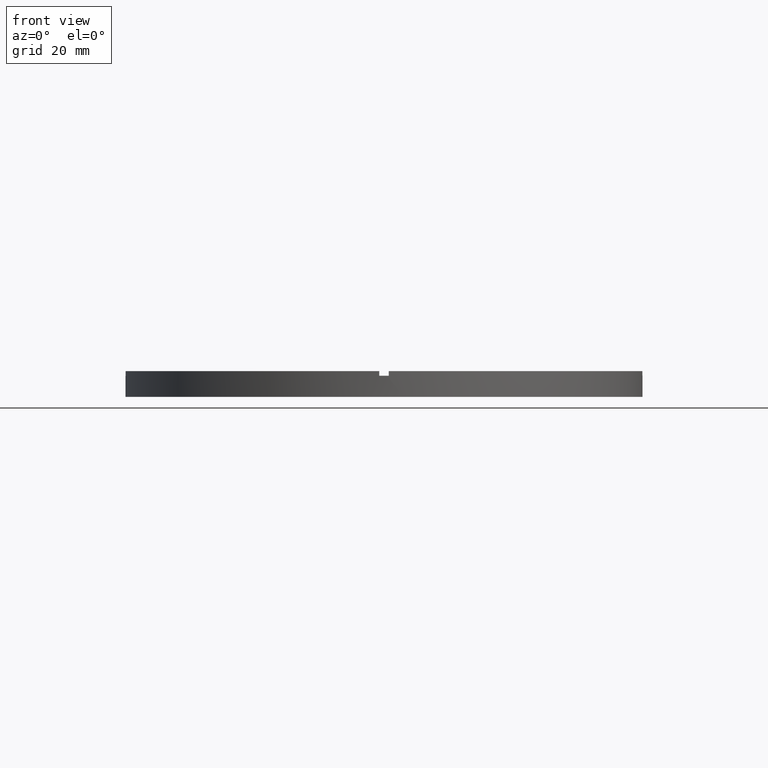
[diagram: clean part render]
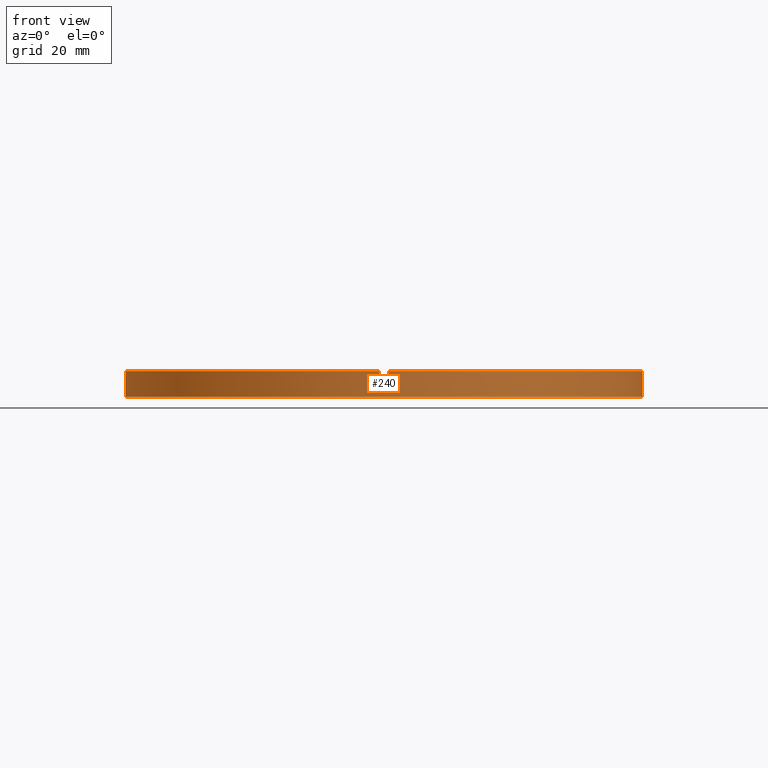
[diagram: same view with one face highlighted and labeled with its STEP entity id]
A machine part, front view. The second image highlights one B-rep face of the part: STEP entity #240.
In plain terms, the highlighted cylindrical surface (partial cylindrical patch) has radius 55 mm, axis along (-0, -0, -1).
Its self-contained STEP definition (entity closure, byte-faithful):
#3 = DIRECTION ( 'NONE',  ( 0.000000000000000000, 0.000000000000000000, 1.000000000000000000 ) ) ;
#12 = CIRCLE ( 'NONE', #231, 55.00000000000000000 ) ;
#13 = EDGE_CURVE ( 'NONE', #445, #421, #239, .T. ) ;
#15 = VECTOR ( 'NONE', #529, 1000.000000000000000 ) ;
#17 = LINE ( 'NONE', #228, #298 ) ;
#33 = CYLINDRICAL_SURFACE ( 'NONE', #345, 55.00000000000000000 ) ;
#36 = LINE ( 'NONE', #241, #15 ) ;
#56 = EDGE_CURVE ( 'NONE', #482, #685, #247, .T. ) ;
#60 = CARTESIAN_POINT ( 'NONE',  ( 0.000000000000000000, 0.000000000000000000, 4.500000000000000000 ) ) ;
#73 = DIRECTION ( 'NONE',  ( 1.000000000000000000, 0.000000000000000000, 0.000000000000000000 ) ) ;
#93 = CARTESIAN_POINT ( 'NONE',  ( -55.00000000000000000, 0.000000000000000000, 4.500000000000000000 ) ) ;
#95 = CARTESIAN_POINT ( 'NONE',  ( 55.00000000000000000, 6.735557395310442615E-15, 4.500000000000000000 ) ) ;
#100 = CARTESIAN_POINT ( 'NONE',  ( -55.00000000000000000, 0.000000000000000000, 5.500000000000000000 ) ) ;
#108 = LINE ( 'NONE', #317, #392 ) ;
#127 = EDGE_CURVE ( 'NONE', #438, #151, #17, .T. ) ;
#129 = CIRCLE ( 'NONE', #316, 55.00000000000000000 ) ;
#139 = CARTESIAN_POINT ( 'NONE',  ( -54.99090833947007440, -1.000000000000032863, 4.500000000000000000 ) ) ;
#147 = DIRECTION ( 'NONE',  ( -1.000000000000000000, 0.000000000000000000, 0.000000000000000000 ) ) ;
#148 = ORIENTED_EDGE ( 'NONE', *, *, #394, .T. ) ;
#151 = VERTEX_POINT ( 'NONE', #248 ) ;
#154 = ORIENTED_EDGE ( 'NONE', *, *, #269, .T. ) ;
#161 = CARTESIAN_POINT ( 'NONE',  ( 0.000000000000000000, 0.000000000000000000, 5.500000000000000000 ) ) ;
#173 = ORIENTED_EDGE ( 'NONE', *, *, #571, .T. ) ;
#178 = DIRECTION ( 'NONE',  ( 1.000000000000000000, 0.000000000000000000, 0.000000000000000000 ) ) ;
#185 = VERTEX_POINT ( 'NONE', #93 ) ;
#192 = ORIENTED_EDGE ( 'NONE', *, *, #614, .F. ) ;
#193 = ORIENTED_EDGE ( 'NONE', *, *, #13, .T. ) ;
#196 = VERTEX_POINT ( 'NONE', #139 ) ;
#219 = VERTEX_POINT ( 'NONE', #260 ) ;
#228 = CARTESIAN_POINT ( 'NONE',  ( 0.9999999999998445688, -54.99090833947008150, 5.500000000000000000 ) ) ;
#231 = AXIS2_PLACEMENT_3D ( 'NONE', #620, #503, #770 ) ;
#239 = LINE ( 'NONE', #622, #763 ) ;
#240 = ADVANCED_FACE ( 'NONE', ( #303 ), #33, .T. ) ;
#241 = CARTESIAN_POINT ( 'NONE',  ( -1.000000000000155431, -54.99090833947007440, 5.500000000000000000 ) ) ;
#247 = CIRCLE ( 'NONE', #367, 55.00000000000000000 ) ;
#248 = CARTESIAN_POINT ( 'NONE',  ( 0.9999999999998445688, -54.99090833947008150, 4.500000000000000000 ) ) ;
#260 = CARTESIAN_POINT ( 'NONE',  ( -55.00000000000000000, 0.000000000000000000, 0.000000000000000000 ) ) ;
#262 = EDGE_CURVE ( 'NONE', #219, #710, #12, .T. ) ;
#269 = EDGE_CURVE ( 'NONE', #419, #685, #36, .T. ) ;
#292 = DIRECTION ( 'NONE',  ( -0.000000000000000000, 0.000000000000000000, 1.000000000000000000 ) ) ;
#293 = DIRECTION ( 'NONE',  ( -0.000000000000000000, -0.000000000000000000, -1.000000000000000000 ) ) ;
#298 = VECTOR ( 'NONE', #328, 1000.000000000000000 ) ;
#303 = FACE_OUTER_BOUND ( 'NONE', #741, .T. ) ;
#306 = DIRECTION ( 'NONE',  ( 1.000000000000000000, 0.000000000000000000, 0.000000000000000000 ) ) ;
#310 = EDGE_CURVE ( 'NONE', #185, #196, #542, .T. ) ;
#316 = AXIS2_PLACEMENT_3D ( 'NONE', #781, #292, #306 ) ;
#317 = CARTESIAN_POINT ( 'NONE',  ( -54.99090833947007440, -1.000000000000032863, 5.500000000000000000 ) ) ;
#327 = AXIS2_PLACEMENT_3D ( 'NONE', #60, #645, #178 ) ;
#328 = DIRECTION ( 'NONE',  ( -0.000000000000000000, -0.000000000000000000, -1.000000000000000000 ) ) ;
#345 = AXIS2_PLACEMENT_3D ( 'NONE', #386, #500, #147 ) ;
#356 = DIRECTION ( 'NONE',  ( -0.000000000000000000, -0.000000000000000000, -1.000000000000000000 ) ) ;
#359 = CARTESIAN_POINT ( 'NONE',  ( 54.99090833947007440, -1.000000000000154099, 5.500000000000000000 ) ) ;
#361 = DIRECTION ( 'NONE',  ( -0.000000000000000000, -0.000000000000000000, -1.000000000000000000 ) ) ;
#364 = DIRECTION ( 'NONE',  ( 1.000000000000000000, 0.000000000000000000, 0.000000000000000000 ) ) ;
#367 = AXIS2_PLACEMENT_3D ( 'NONE', #468, #765, #73 ) ;
#378 = CIRCLE ( 'NONE', #327, 55.00000000000000000 ) ;
#380 = LINE ( 'NONE', #100, #381 ) ;
#381 = VECTOR ( 'NONE', #293, 1000.000000000000000 ) ;
#386 = CARTESIAN_POINT ( 'NONE',  ( 0.000000000000000000, 0.000000000000000000, 5.500000000000000000 ) ) ;
#392 = VECTOR ( 'NONE', #361, 1000.000000000000000 ) ;
#394 = EDGE_CURVE ( 'NONE', #482, #196, #108, .T. ) ;
#395 = LINE ( 'NONE', #747, #641 ) ;
#398 = CARTESIAN_POINT ( 'NONE',  ( -1.000000000000155431, -54.99090833947007440, 5.500000000000000000 ) ) ;
#402 = EDGE_CURVE ( 'NONE', #444, #710, #395, .T. ) ;
#416 = CARTESIAN_POINT ( 'NONE',  ( 54.99090833947007440, -1.000000000000154099, 4.500000000000000000 ) ) ;
#419 = VERTEX_POINT ( 'NONE', #427 ) ;
#421 = VERTEX_POINT ( 'NONE', #359 ) ;
#427 = CARTESIAN_POINT ( 'NONE',  ( -1.000000000000155431, -54.99090833947007440, 4.500000000000000000 ) ) ;
#430 = ORIENTED_EDGE ( 'NONE', *, *, #262, .T. ) ;
#437 = ORIENTED_EDGE ( 'NONE', *, *, #402, .F. ) ;
#438 = VERTEX_POINT ( 'NONE', #721 ) ;
#444 = VERTEX_POINT ( 'NONE', #95 ) ;
#445 = VERTEX_POINT ( 'NONE', #416 ) ;
#454 = CARTESIAN_POINT ( 'NONE',  ( 55.00000000000000000, 6.735557395310442615E-15, 0.000000000000000000 ) ) ;
#463 = ORIENTED_EDGE ( 'NONE', *, *, #56, .F. ) ;
#468 = CARTESIAN_POINT ( 'NONE',  ( 0.000000000000000000, 0.000000000000000000, 5.500000000000000000 ) ) ;
#472 = ORIENTED_EDGE ( 'NONE', *, *, #127, .T. ) ;
#482 = VERTEX_POINT ( 'NONE', #652 ) ;
#500 = DIRECTION ( 'NONE',  ( -0.000000000000000000, -0.000000000000000000, -1.000000000000000000 ) ) ;
#503 = DIRECTION ( 'NONE',  ( 0.000000000000000000, 0.000000000000000000, 1.000000000000000000 ) ) ;
#527 = EDGE_CURVE ( 'NONE', #445, #444, #378, .T. ) ;
#529 = DIRECTION ( 'NONE',  ( 0.000000000000000000, 0.000000000000000000, 1.000000000000000000 ) ) ;
#541 = DIRECTION ( 'NONE',  ( 1.000000000000000000, 0.000000000000000000, 0.000000000000000000 ) ) ;
#542 = CIRCLE ( 'NONE', #544, 55.00000000000000000 ) ;
#544 = AXIS2_PLACEMENT_3D ( 'NONE', #608, #612, #364 ) ;
#571 = EDGE_CURVE ( 'NONE', #185, #219, #380, .T. ) ;
#595 = EDGE_CURVE ( 'NONE', #438, #421, #656, .T. ) ;
#608 = CARTESIAN_POINT ( 'NONE',  ( 0.000000000000000000, 0.000000000000000000, 4.500000000000000000 ) ) ;
#612 = DIRECTION ( 'NONE',  ( 0.000000000000000000, 0.000000000000000000, 1.000000000000000000 ) ) ;
#614 = EDGE_CURVE ( 'NONE', #419, #151, #129, .T. ) ;
#618 = AXIS2_PLACEMENT_3D ( 'NONE', #161, #3, #541 ) ;
#620 = CARTESIAN_POINT ( 'NONE',  ( 0.000000000000000000, 0.000000000000000000, 0.000000000000000000 ) ) ;
#622 = CARTESIAN_POINT ( 'NONE',  ( 54.99090833947007440, -1.000000000000154099, 5.500000000000000000 ) ) ;
#641 = VECTOR ( 'NONE', #356, 1000.000000000000000 ) ;
#645 = DIRECTION ( 'NONE',  ( 0.000000000000000000, 0.000000000000000000, 1.000000000000000000 ) ) ;
#652 = CARTESIAN_POINT ( 'NONE',  ( -54.99090833947007440, -1.000000000000032863, 5.500000000000000000 ) ) ;
#656 = CIRCLE ( 'NONE', #618, 55.00000000000000000 ) ;
#668 = ORIENTED_EDGE ( 'NONE', *, *, #595, .F. ) ;
#682 = ORIENTED_EDGE ( 'NONE', *, *, #310, .F. ) ;
#685 = VERTEX_POINT ( 'NONE', #398 ) ;
#697 = DIRECTION ( 'NONE',  ( 0.000000000000000000, 0.000000000000000000, 1.000000000000000000 ) ) ;
#710 = VERTEX_POINT ( 'NONE', #454 ) ;
#721 = CARTESIAN_POINT ( 'NONE',  ( 0.9999999999998445688, -54.99090833947008150, 5.500000000000000000 ) ) ;
#726 = ORIENTED_EDGE ( 'NONE', *, *, #527, .F. ) ;
#741 = EDGE_LOOP ( 'NONE', ( #437, #726, #193, #668, #472, #192, #154, #463, #148, #682, #173, #430 ) ) ;
#747 = CARTESIAN_POINT ( 'NONE',  ( 55.00000000000000000, 6.735557395310442615E-15, 5.500000000000000000 ) ) ;
#763 = VECTOR ( 'NONE', #697, 1000.000000000000000 ) ;
#765 = DIRECTION ( 'NONE',  ( 0.000000000000000000, 0.000000000000000000, 1.000000000000000000 ) ) ;
#770 = DIRECTION ( 'NONE',  ( 1.000000000000000000, 0.000000000000000000, 0.000000000000000000 ) ) ;
#781 = CARTESIAN_POINT ( 'NONE',  ( 0.000000000000000000, 0.000000000000000000, 4.500000000000000000 ) ) ;